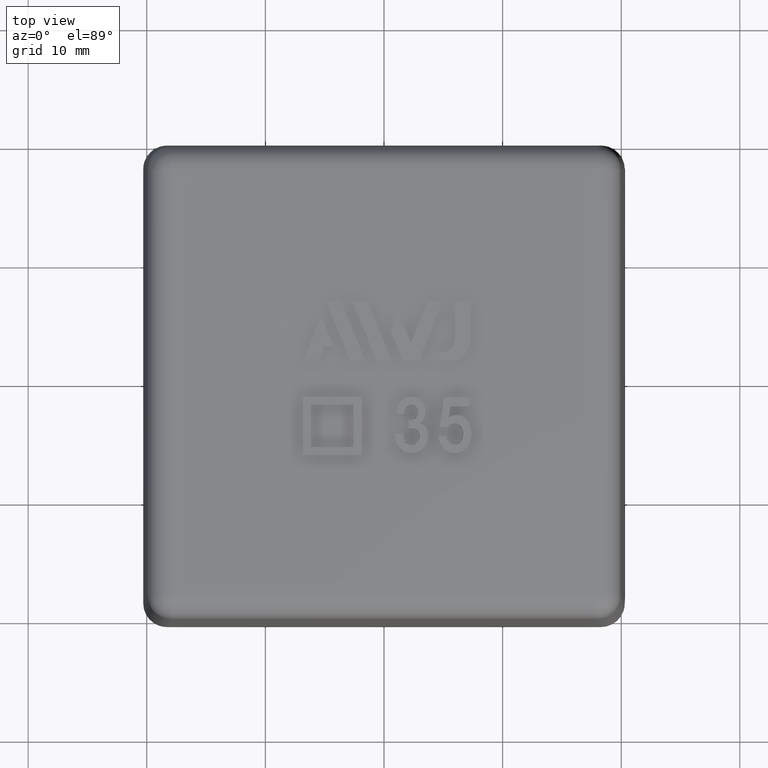
[diagram: clean part render]
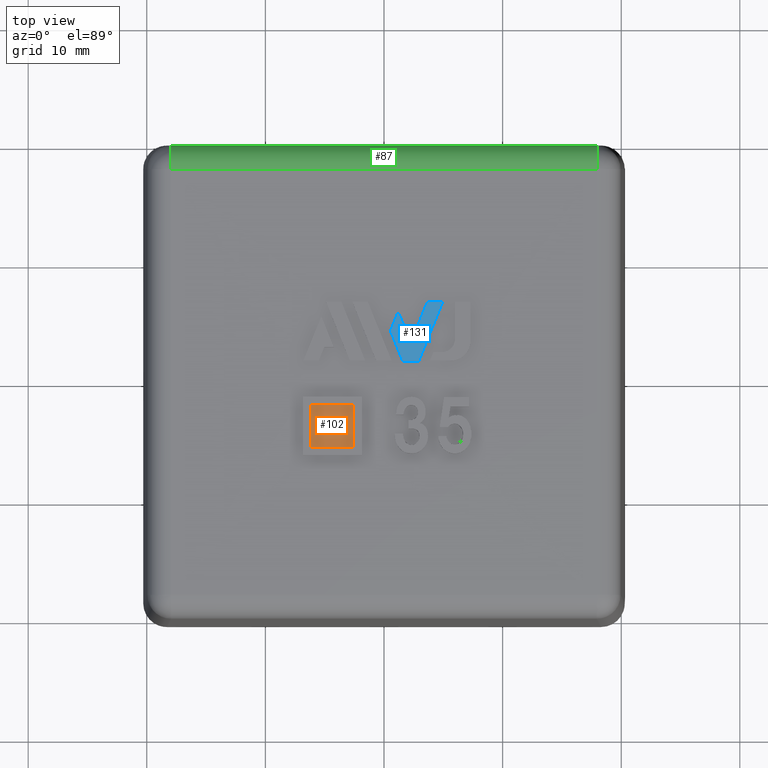
[diagram: same view with three faces highlighted in distinct colors, each labeled with its STEP entity id]
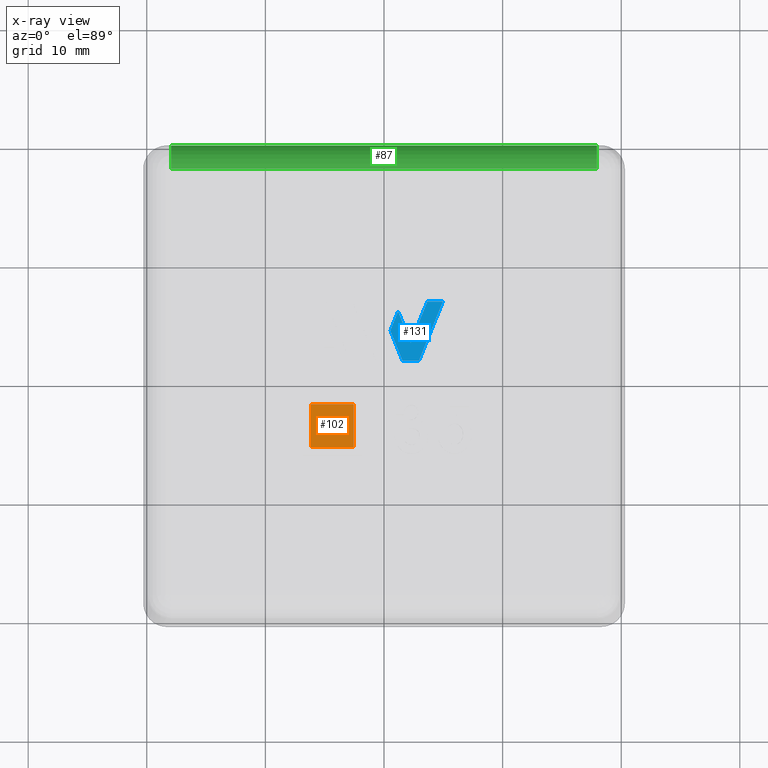
[diagram: x-ray of the same camera — body ghosted, the three highlighted faces saturated]
A machine part, top view with three faces highlighted in distinct colors.
The next image is the same camera in x-ray (body ghosted, the three faces saturated) — at least one of them is partly hidden behind the body in this view.
Their STEP definitions:

[orange] entity #102 — the highlighted planar face has unit normal (0, 0, 1).
#102 = ADVANCED_FACE( '', ( #225 ), #226, .T. );
#225 = FACE_OUTER_BOUND( '', #411, .T. );
#226 = PLANE( '', #412 );
#411 = EDGE_LOOP( '', ( #821, #822, #823, #824 ) );
#412 = AXIS2_PLACEMENT_3D( '', #825, #826, #827 );
#821 = ORIENTED_EDGE( '', *, *, #1389, .T. );
#822 = ORIENTED_EDGE( '', *, *, #1390, .T. );
#823 = ORIENTED_EDGE( '', *, *, #1391, .T. );
#824 = ORIENTED_EDGE( '', *, *, #1392, .T. );
#825 = CARTESIAN_POINT( '', ( -20.3000000000000, -20.3000000000000, 22.0000000000000 ) );
#826 = DIRECTION( '', ( 0.000000000000000, 0.000000000000000, 1.00000000000000 ) );
#827 = DIRECTION( '', ( 0.000000000000000, -1.00000000000000, 0.000000000000000 ) );
#1389 = EDGE_CURVE( '', #1693, #1694, #1695, .T. );
#1390 = EDGE_CURVE( '', #1694, #1696, #1697, .T. );
#1391 = EDGE_CURVE( '', #1696, #1698, #1699, .T. );
#1392 = EDGE_CURVE( '', #1698, #1693, #1700, .T. );
#1693 = VERTEX_POINT( '', #2285 );
#1694 = VERTEX_POINT( '', #2286 );
#1695 = B_SPLINE_CURVE_WITH_KNOTS( '', 2, ( #2287, #2288, #2289 ), .UNSPECIFIED., .F., .F., ( 3, 3 ), ( 3.00000000000000, 4.00000000000000 ), .UNSPECIFIED. );
#1696 = VERTEX_POINT( '', #2290 );
#1697 = B_SPLINE_CURVE_WITH_KNOTS( '', 2, ( #2291, #2292, #2293 ), .UNSPECIFIED., .F., .F., ( 3, 3 ), ( 0.000000000000000, 1.00000000000000 ), .UNSPECIFIED. );
#1698 = VERTEX_POINT( '', #2294 );
#1699 = B_SPLINE_CURVE_WITH_KNOTS( '', 2, ( #2295, #2296, #2297 ), .UNSPECIFIED., .F., .F., ( 3, 3 ), ( 1.00000000000000, 2.00000000000000 ), .UNSPECIFIED. );
#1700 = B_SPLINE_CURVE_WITH_KNOTS( '', 2, ( #2298, #2299, #2300 ), .UNSPECIFIED., .F., .F., ( 3, 3 ), ( 2.00000000000000, 3.00000000000000 ), .UNSPECIFIED. );
#2285 = CARTESIAN_POINT( '', ( -6.16956306818186, -1.91991818181820, 22.0000000000000 ) );
#2286 = CARTESIAN_POINT( '', ( -6.16956306818186, -5.53355454545456, 22.0000000000000 ) );
#2287 = CARTESIAN_POINT( '', ( -6.16956306818186, -1.91991818181820, 22.0000000000000 ) );
#2288 = CARTESIAN_POINT( '', ( -6.16956306818186, -3.72673636363638, 22.0000000000000 ) );
#2289 = CARTESIAN_POINT( '', ( -6.16956306818186, -5.53355454545456, 22.0000000000000 ) );
#2290 = CARTESIAN_POINT( '', ( -2.55592670454549, -5.53355454545456, 22.0000000000000 ) );
#2291 = CARTESIAN_POINT( '', ( -6.16956306818186, -5.53355454545456, 22.0000000000000 ) );
#2292 = CARTESIAN_POINT( '', ( -4.36274488636367, -5.53355454545456, 22.0000000000000 ) );
#2293 = CARTESIAN_POINT( '', ( -2.55592670454549, -5.53355454545456, 22.0000000000000 ) );
#2294 = CARTESIAN_POINT( '', ( -2.55592670454549, -1.91991818181820, 22.0000000000000 ) );
#2295 = CARTESIAN_POINT( '', ( -2.55592670454549, -5.53355454545456, 22.0000000000000 ) );
#2296 = CARTESIAN_POINT( '', ( -2.55592670454549, -3.72673636363638, 22.0000000000000 ) );
#2297 = CARTESIAN_POINT( '', ( -2.55592670454549, -1.91991818181820, 22.0000000000000 ) );
#2298 = CARTESIAN_POINT( '', ( -2.55592670454549, -1.91991818181820, 22.0000000000000 ) );
#2299 = CARTESIAN_POINT( '', ( -4.36274488636367, -1.91991818181820, 22.0000000000000 ) );
#2300 = CARTESIAN_POINT( '', ( -6.16956306818186, -1.91991818181820, 22.0000000000000 ) );

[blue] entity #131 — the highlighted planar face has unit normal (0, 0, 1).
#131 = ADVANCED_FACE( '', ( #284 ), #285, .T. );
#284 = FACE_OUTER_BOUND( '', #472, .T. );
#285 = PLANE( '', #473 );
#472 = EDGE_LOOP( '', ( #1037, #1038, #1039, #1040, #1041, #1042, #1043 ) );
#473 = AXIS2_PLACEMENT_3D( '', #1044, #1045, #1046 );
#1037 = ORIENTED_EDGE( '', *, *, #1440, .T. );
#1038 = ORIENTED_EDGE( '', *, *, #1441, .T. );
#1039 = ORIENTED_EDGE( '', *, *, #1442, .T. );
#1040 = ORIENTED_EDGE( '', *, *, #1443, .T. );
#1041 = ORIENTED_EDGE( '', *, *, #1444, .T. );
#1042 = ORIENTED_EDGE( '', *, *, #1445, .T. );
#1043 = ORIENTED_EDGE( '', *, *, #1446, .T. );
#1044 = CARTESIAN_POINT( '', ( 176.806592040989, 67.5189999431422, 22.1667500000000 ) );
#1045 = DIRECTION( '', ( 0.000000000000000, 6.12303176911189E-017, 1.00000000000000 ) );
#1046 = DIRECTION( '', ( -1.00000000000000, 0.000000000000000, 0.000000000000000 ) );
#1440 = EDGE_CURVE( '', #1771, #1772, #1773, .T. );
#1441 = EDGE_CURVE( '', #1772, #1774, #1775, .T. );
#1442 = EDGE_CURVE( '', #1774, #1776, #1777, .T. );
#1443 = EDGE_CURVE( '', #1776, #1778, #1779, .T. );
#1444 = EDGE_CURVE( '', #1778, #1780, #1781, .T. );
#1445 = EDGE_CURVE( '', #1780, #1782, #1783, .T. );
#1446 = EDGE_CURVE( '', #1782, #1771, #1784, .T. );
#1771 = VERTEX_POINT( '', #2426 );
#1772 = VERTEX_POINT( '', #2427 );
#1773 = LINE( '', #2428, #2429 );
#1774 = VERTEX_POINT( '', #2430 );
#1775 = LINE( '', #2431, #2432 );
#1776 = VERTEX_POINT( '', #2433 );
#1777 = LINE( '', #2434, #2435 );
#1778 = VERTEX_POINT( '', #2436 );
#1779 = LINE( '', #2437, #2438 );
#1780 = VERTEX_POINT( '', #2439 );
#1781 = LINE( '', #2440, #2441 );
#1782 = VERTEX_POINT( '', #2442 );
#1783 = LINE( '', #2443, #2444 );
#1784 = LINE( '', #2445, #2446 );
#2426 = CARTESIAN_POINT( '', ( 2.93668055358246, 1.75939937499999, 22.1667500000000 ) );
#2427 = CARTESIAN_POINT( '', ( 4.95725183266497, 6.76073918853000, 22.1667500000000 ) );
#2428 = CARTESIAN_POINT( '', ( 2.93668055358246, 1.75939937499999, 22.1667500000000 ) );
#2429 = VECTOR( '', #2658, 1000.00000000000 );
#2430 = CARTESIAN_POINT( '', ( 3.66485484877747, 6.76073918853000, 22.1667500000000 ) );
#2431 = CARTESIAN_POINT( '', ( 4.95725183266497, 6.76073918853000, 22.1667500000000 ) );
#2432 = VECTOR( '', #2659, 1000.00000000000 );
#2433 = CARTESIAN_POINT( '', ( 2.25344672072247, 3.26779163672124, 22.1667500000000 ) );
#2434 = CARTESIAN_POINT( '', ( 3.66485484877747, 6.76073918853000, 22.1667500000000 ) );
#2435 = VECTOR( '', #2660, 1000.00000000000 );
#2436 = CARTESIAN_POINT( '', ( 1.18704000216497, 5.90711898589374, 22.1667500000000 ) );
#2437 = CARTESIAN_POINT( '', ( 2.25344672072247, 3.26779163672124, 22.1667500000000 ) );
#2438 = VECTOR( '', #2661, 1000.00000000000 );
#2439 = CARTESIAN_POINT( '', ( 0.540841510221222, 4.30744161859625, 22.1667500000000 ) );
#2440 = CARTESIAN_POINT( '', ( 1.18704000216497, 5.90711898589374, 22.1667500000000 ) );
#2441 = VECTOR( '', #2662, 1000.00000000000 );
#2442 = CARTESIAN_POINT( '', ( 1.57049706071122, 1.75939937499999, 22.1667500000000 ) );
#2443 = CARTESIAN_POINT( '', ( 0.540841510221222, 4.30744161859625, 22.1667500000000 ) );
#2444 = VECTOR( '', #2663, 1000.00000000000 );
#2445 = CARTESIAN_POINT( '', ( 1.57049706071122, 1.75939937499999, 22.1667500000000 ) );
#2446 = VECTOR( '', #2664, 1000.00000000000 );
#2658 = DIRECTION( '', ( 0.374590469627020, 0.927190368837278, -5.67721608440522E-017 ) );
#2659 = DIRECTION( '', ( -1.00000000000000, 0.000000000000000, 0.000000000000000 ) );
#2660 = DIRECTION( '', ( -0.374644407000048, -0.927168575990139, 5.67708264610985E-017 ) );
#2661 = DIRECTION( '', ( -0.374621466961798, 0.927177845125405, -5.67713940131956E-017 ) );
#2662 = DIRECTION( '', ( -0.374550228315492, -0.927206625552694, 5.67731562479017E-017 ) );
#2663 = DIRECTION( '', ( 0.374662791989133, -0.927161146888127, 5.67703715748221E-017 ) );
#2664 = DIRECTION( '', ( 1.00000000000000, 5.55111512312578E-017, -3.39896542528966E-033 ) );

[green] entity #87 — the highlighted cylindrical surface (edge-blend (fillet) strip) has radius 2 mm, axis along (1, 0, 0).
#87 = ADVANCED_FACE( '', ( #194 ), #195, .T. );
#194 = FACE_OUTER_BOUND( '', #379, .T. );
#195 = CYLINDRICAL_SURFACE( '', #380, 2.00000000000000 );
#379 = EDGE_LOOP( '', ( #692, #693, #694, #695 ) );
#380 = AXIS2_PLACEMENT_3D( '', #696, #697, #698 );
#692 = ORIENTED_EDGE( '', *, *, #1354, .T. );
#693 = ORIENTED_EDGE( '', *, *, #1280, .F. );
#694 = ORIENTED_EDGE( '', *, *, #1355, .F. );
#695 = ORIENTED_EDGE( '', *, *, #1350, .F. );
#696 = CARTESIAN_POINT( '', ( -20.3000000000000, 17.9505940453478, 20.0000000000000 ) );
#697 = DIRECTION( '', ( 1.00000000000000, 0.000000000000000, 0.000000000000000 ) );
#698 = DIRECTION( '', ( 0.000000000000000, 0.000000000000000, 1.00000000000000 ) );
#1280 = EDGE_CURVE( '', #1499, #1501, #1502, .F. );
#1350 = EDGE_CURVE( '', #1627, #1632, #1633, .F. );
#1354 = EDGE_CURVE( '', #1627, #1501, #1638, .T. );
#1355 = EDGE_CURVE( '', #1632, #1499, #1639, .T. );
#1499 = VERTEX_POINT( '', #1892 );
#1501 = VERTEX_POINT( '', #1895 );
#1502 = LINE( '', #1896, #1897 );
#1627 = VERTEX_POINT( '', #2171 );
#1632 = VERTEX_POINT( '', #2177 );
#1633 = LINE( '', #2178, #2179 );
#1638 = CIRCLE( '', #2186, 2.00000000000000 );
#1639 = CIRCLE( '', #2187, 2.00000000000000 );
#1892 = CARTESIAN_POINT( '', ( 17.9505940453478, 17.9505940453478, 22.0000000000000 ) );
#1895 = CARTESIAN_POINT( '', ( -17.9505940453478, 17.9505940453478, 22.0000000000000 ) );
#1896 = CARTESIAN_POINT( '', ( -17.9162931812664, 17.9505940453478, 22.0000000000000 ) );
#1897 = VECTOR( '', #2516, 1000.00000000000 );
#2171 = CARTESIAN_POINT( '', ( -17.9505940453478, 19.9502894356606, 20.0349048128746 ) );
#2177 = CARTESIAN_POINT( '', ( 17.9505940453478, 19.9502894356606, 20.0349048128746 ) );
#2178 = CARTESIAN_POINT( '', ( 17.9162931812664, 19.9502894356606, 20.0349048128746 ) );
#2179 = VECTOR( '', #2569, 1000.00000000000 );
#2186 = AXIS2_PLACEMENT_3D( '', #2575, #2576, #2577 );
#2187 = AXIS2_PLACEMENT_3D( '', #2578, #2579, #2580 );
#2516 = DIRECTION( '', ( 1.00000000000000, 0.000000000000000, 0.000000000000000 ) );
#2569 = DIRECTION( '', ( -1.00000000000000, 0.000000000000000, 0.000000000000000 ) );
#2575 = CARTESIAN_POINT( '', ( -17.9505940453478, 17.9505940453478, 20.0000000000000 ) );
#2576 = DIRECTION( '', ( 1.00000000000000, -1.73498772301062E-015, 0.000000000000000 ) );
#2577 = DIRECTION( '', ( 1.73498772301062E-015, 1.00000000000000, 0.000000000000000 ) );
#2578 = CARTESIAN_POINT( '', ( 17.9505940453478, 17.9505940453478, 20.0000000000000 ) );
#2579 = DIRECTION( '', ( 1.00000000000000, 0.000000000000000, 0.000000000000000 ) );
#2580 = DIRECTION( '', ( 0.000000000000000, 0.000000000000000, -1.00000000000000 ) );